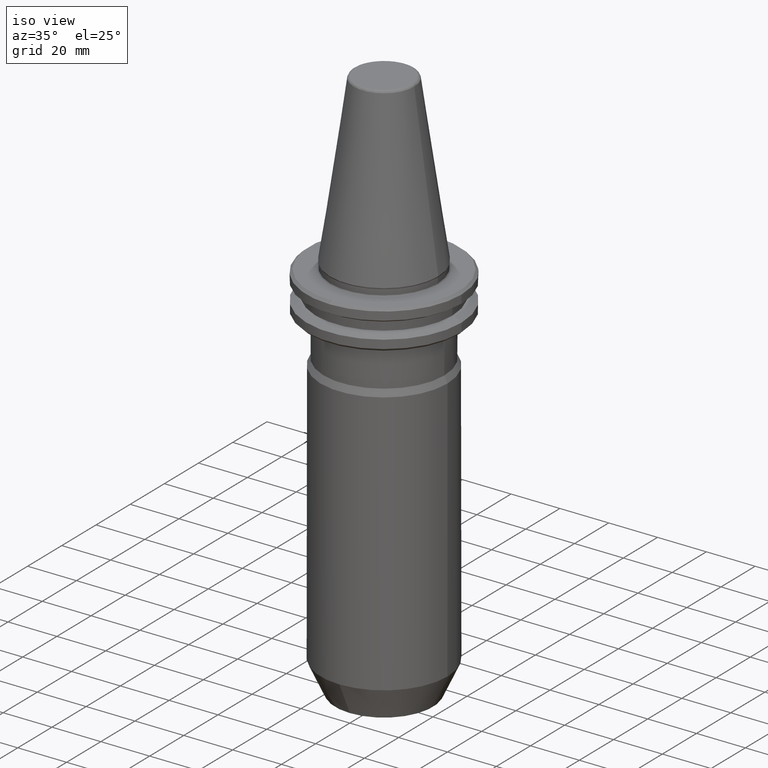
[diagram: clean part render]
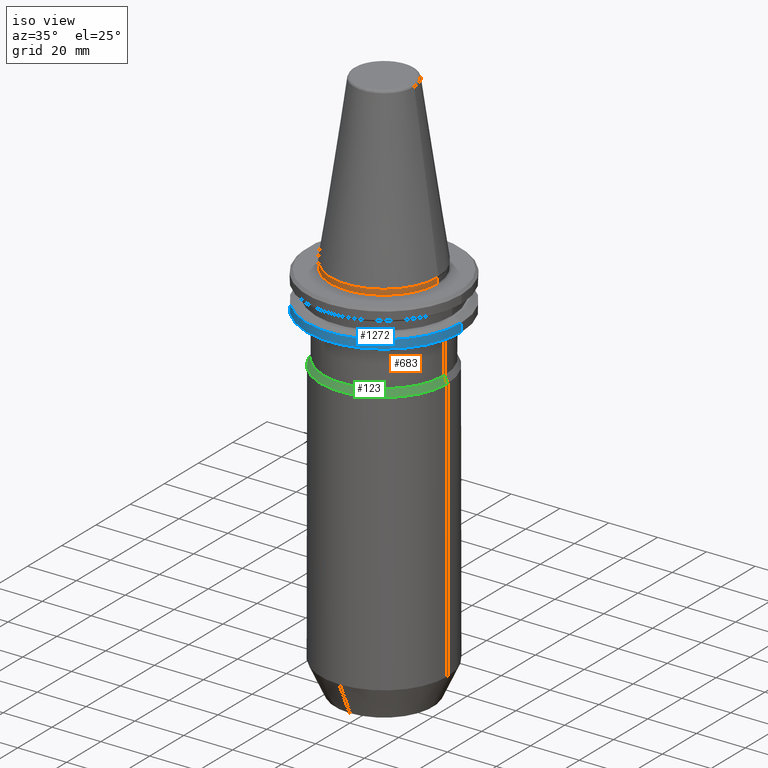
[diagram: same view with three faces highlighted in distinct colors, each labeled with its STEP entity id]
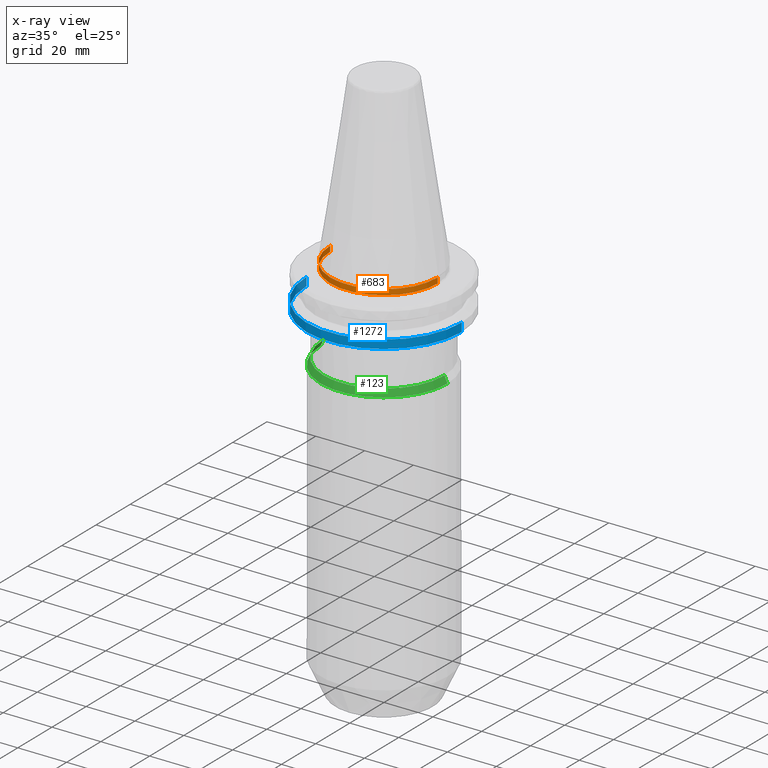
[diagram: x-ray of the same camera — body ghosted, the three highlighted faces saturated]
A machine part, iso view with three faces highlighted in distinct colors.
The next image is the same camera in x-ray (body ghosted, the three faces saturated) — at least one of them is partly hidden behind the body in this view.
Their STEP definitions:

[orange] entity #683 — the highlighted cylindrical surface (partial cylindrical patch) has radius 22 mm, axis along (0, 0, 1).
#63 = VECTOR ( 'NONE', #391, 1000.000000000000000 ) ;
#111 = EDGE_CURVE ( 'NONE', #387, #1579, #350, .T. ) ;
#207 = CYLINDRICAL_SURFACE ( 'NONE', #1058, 22.00000000000000000 ) ;
#245 = LINE ( 'NONE', #1065, #63 ) ;
#350 = LINE ( 'NONE', #1366, #1369 ) ;
#374 = CARTESIAN_POINT ( 'NONE',  ( 0.0000000000000000000, 0.0000000000000000000, 113.5216080541959500 ) ) ;
#387 = VERTEX_POINT ( 'NONE', #957 ) ;
#391 = DIRECTION ( 'NONE',  ( 0.0000000000000000000, 0.0000000000000000000, 1.000000000000000000 ) ) ;
#412 = EDGE_CURVE ( 'NONE', #1539, #387, #414, .T. ) ;
#414 = CIRCLE ( 'NONE', #1040, 22.00000000000000400 ) ;
#565 = DIRECTION ( 'NONE',  ( -0.0000000000000000000, -0.0000000000000000000, -1.000000000000000000 ) ) ;
#579 = EDGE_CURVE ( 'NONE', #1579, #606, #1168, .T. ) ;
#606 = VERTEX_POINT ( 'NONE', #1590 ) ;
#682 = CARTESIAN_POINT ( 'NONE',  ( 0.0000000000000000000, 0.0000000000000000000, -2.699999999999994000 ) ) ;
#683 = ADVANCED_FACE ( 'NONE', ( #1608 ), #207, .T. ) ;
#739 = CARTESIAN_POINT ( 'NONE',  ( -22.00000000000000400, 2.694222958124177600E-015, -2.699999999999994000 ) ) ;
#817 = AXIS2_PLACEMENT_3D ( 'NONE', #1370, #565, #1484 ) ;
#818 = DIRECTION ( 'NONE',  ( 1.000000000000000000, 0.0000000000000000000, 0.0000000000000000000 ) ) ;
#911 = DIRECTION ( 'NONE',  ( 1.000000000000000000, 0.0000000000000000000, 0.0000000000000000000 ) ) ;
#957 = CARTESIAN_POINT ( 'NONE',  ( 22.00000000000000400, 0.0000000000000000000, -2.699999999999994000 ) ) ;
#1025 = ORIENTED_EDGE ( 'NONE', *, *, #412, .T. ) ;
#1040 = AXIS2_PLACEMENT_3D ( 'NONE', #682, #1575, #818 ) ;
#1058 = AXIS2_PLACEMENT_3D ( 'NONE', #374, #1172, #911 ) ;
#1065 = CARTESIAN_POINT ( 'NONE',  ( -22.00000000000000000, 2.694222958124176800E-015, 113.5216080541959500 ) ) ;
#1168 = CIRCLE ( 'NONE', #817, 22.00000000000000000 ) ;
#1172 = DIRECTION ( 'NONE',  ( 0.0000000000000000000, 0.0000000000000000000, 1.000000000000000000 ) ) ;
#1207 = ORIENTED_EDGE ( 'NONE', *, *, #1384, .F. ) ;
#1224 = DIRECTION ( 'NONE',  ( 0.0000000000000000000, 0.0000000000000000000, 1.000000000000000000 ) ) ;
#1288 = CARTESIAN_POINT ( 'NONE',  ( 22.00000000000000000, 0.0000000000000000000, -0.4825140571146635500 ) ) ;
#1325 = ORIENTED_EDGE ( 'NONE', *, *, #111, .T. ) ;
#1366 = CARTESIAN_POINT ( 'NONE',  ( 22.00000000000000000, 0.0000000000000000000, 113.5216080541959500 ) ) ;
#1369 = VECTOR ( 'NONE', #1224, 1000.000000000000000 ) ;
#1370 = CARTESIAN_POINT ( 'NONE',  ( 0.0000000000000000000, 0.0000000000000000000, -0.4825140571146635500 ) ) ;
#1384 = EDGE_CURVE ( 'NONE', #1539, #606, #245, .T. ) ;
#1390 = EDGE_LOOP ( 'NONE', ( #1207, #1025, #1325, #1526 ) ) ;
#1484 = DIRECTION ( 'NONE',  ( 1.000000000000000000, 0.0000000000000000000, 0.0000000000000000000 ) ) ;
#1526 = ORIENTED_EDGE ( 'NONE', *, *, #579, .T. ) ;
#1539 = VERTEX_POINT ( 'NONE', #739 ) ;
#1575 = DIRECTION ( 'NONE',  ( 0.0000000000000000000, 0.0000000000000000000, 1.000000000000000000 ) ) ;
#1579 = VERTEX_POINT ( 'NONE', #1288 ) ;
#1590 = CARTESIAN_POINT ( 'NONE',  ( -22.00000000000000000, 2.708000234614584800E-015, -0.4825140571146635500 ) ) ;
#1608 = FACE_OUTER_BOUND ( 'NONE', #1390, .T. ) ;

[blue] entity #1272 — the highlighted cylindrical surface (partial cylindrical patch) has radius 31.75 mm, axis along (0, 0, 1).
#31 = ORIENTED_EDGE ( 'NONE', *, *, #1421, .F. ) ;
#74 = EDGE_LOOP ( 'NONE', ( #1628, #831, #567, #31 ) ) ;
#99 = EDGE_CURVE ( 'NONE', #962, #960, #1328, .T. ) ;
#221 = CARTESIAN_POINT ( 'NONE',  ( 31.75000000000000000, 0.0000000000000000000, 113.5216080541959500 ) ) ;
#264 = CARTESIAN_POINT ( 'NONE',  ( 0.0000000000000000000, 0.0000000000000000000, -14.62183664205671200 ) ) ;
#276 = DIRECTION ( 'NONE',  ( 0.0000000000000000000, 0.0000000000000000000, 1.000000000000000000 ) ) ;
#278 = AXIS2_PLACEMENT_3D ( 'NONE', #264, #1199, #400 ) ;
#333 = EDGE_CURVE ( 'NONE', #962, #764, #1208, .T. ) ;
#354 = EDGE_CURVE ( 'NONE', #960, #836, #807, .T. ) ;
#400 = DIRECTION ( 'NONE',  ( -1.000000000000000000, 0.0000000000000000000, 5.463695987328526400E-017 ) ) ;
#423 = CIRCLE ( 'NONE', #278, 31.75000000000000000 ) ;
#452 = VECTOR ( 'NONE', #276, 1000.000000000000000 ) ;
#501 = AXIS2_PLACEMENT_3D ( 'NONE', #1203, #1187, #1182 ) ;
#531 = CARTESIAN_POINT ( 'NONE',  ( -31.75000000000000000, 0.0000000000000000000, -14.62183664205671200 ) ) ;
#567 = ORIENTED_EDGE ( 'NONE', *, *, #333, .T. ) ;
#629 = DIRECTION ( 'NONE',  ( 1.000000000000000000, 0.0000000000000000000, 0.0000000000000000000 ) ) ;
#638 = CARTESIAN_POINT ( 'NONE',  ( 31.75000000000000000, 3.888253587292846500E-015, -14.62183664205671200 ) ) ;
#675 = DIRECTION ( 'NONE',  ( 0.0000000000000000000, 0.0000000000000000000, 1.000000000000000000 ) ) ;
#764 = VERTEX_POINT ( 'NONE', #638 ) ;
#807 = LINE ( 'NONE', #1462, #1459 ) ;
#831 = ORIENTED_EDGE ( 'NONE', *, *, #99, .F. ) ;
#836 = VERTEX_POINT ( 'NONE', #531 ) ;
#960 = VERTEX_POINT ( 'NONE', #1101 ) ;
#962 = VERTEX_POINT ( 'NONE', #1235 ) ;
#1101 = CARTESIAN_POINT ( 'NONE',  ( -31.74999999999925000, 3.888253587292755000E-015, -18.10000000000078300 ) ) ;
#1178 = AXIS2_PLACEMENT_3D ( 'NONE', #1299, #1414, #629 ) ;
#1182 = DIRECTION ( 'NONE',  ( -1.000000000000000000, 0.0000000000000000000, 0.0000000000000000000 ) ) ;
#1187 = DIRECTION ( 'NONE',  ( -0.0000000000000000000, -0.0000000000000000000, -1.000000000000000000 ) ) ;
#1199 = DIRECTION ( 'NONE',  ( -0.0000000000000000000, -0.0000000000000000000, 1.000000000000000000 ) ) ;
#1203 = CARTESIAN_POINT ( 'NONE',  ( 0.0000000000000000000, 0.0000000000000000000, -18.10000000000078300 ) ) ;
#1208 = LINE ( 'NONE', #221, #452 ) ;
#1235 = CARTESIAN_POINT ( 'NONE',  ( 31.74999999999925000, 0.0000000000000000000, -18.10000000000078300 ) ) ;
#1238 = CYLINDRICAL_SURFACE ( 'NONE', #1178, 31.75000000000000000 ) ;
#1272 = ADVANCED_FACE ( 'NONE', ( #1342 ), #1238, .T. ) ;
#1299 = CARTESIAN_POINT ( 'NONE',  ( 0.0000000000000000000, 0.0000000000000000000, 113.5216080541959500 ) ) ;
#1328 = CIRCLE ( 'NONE', #501, 31.75000000000005700 ) ;
#1342 = FACE_OUTER_BOUND ( 'NONE', #74, .T. ) ;
#1414 = DIRECTION ( 'NONE',  ( 0.0000000000000000000, 0.0000000000000000000, 1.000000000000000000 ) ) ;
#1421 = EDGE_CURVE ( 'NONE', #836, #764, #423, .T. ) ;
#1459 = VECTOR ( 'NONE', #675, 1000.000000000000000 ) ;
#1462 = CARTESIAN_POINT ( 'NONE',  ( -31.75000000000000000, 3.888253587292846500E-015, 113.5216080541959500 ) ) ;
#1628 = ORIENTED_EDGE ( 'NONE', *, *, #354, .F. ) ;

[green] entity #123 — the highlighted conical surface has half-angle 25 deg.
#11 = CIRCLE ( 'NONE', #931, 26.00000000000000700 ) ;
#35 = CARTESIAN_POINT ( 'NONE',  ( -26.00000000000000700, 3.184081677783119000E-015, -38.67999999999999300 ) ) ;
#36 = VERTEX_POINT ( 'NONE', #1346 ) ;
#94 = EDGE_CURVE ( 'NONE', #36, #413, #1408, .T. ) ;
#123 = ADVANCED_FACE ( 'NONE', ( #1070 ), #614, .T. ) ;
#192 = EDGE_CURVE ( 'NONE', #1626, #612, #1282, .T. ) ;
#281 = CARTESIAN_POINT ( 'NONE',  ( 0.0000000000000000000, 0.0000000000000000000, -35.99936634936307200 ) ) ;
#361 = CARTESIAN_POINT ( 'NONE',  ( 0.0000000000000000000, 0.0000000000000000000, -38.67999999999999300 ) ) ;
#413 = VERTEX_POINT ( 'NONE', #1351 ) ;
#419 = DIRECTION ( 'NONE',  ( -1.000000000000000000, 0.0000000000000000000, 0.0000000000000000000 ) ) ;
#451 = ORIENTED_EDGE ( 'NONE', *, *, #192, .T. ) ;
#487 = DIRECTION ( 'NONE',  ( 1.000000000000000000, 0.0000000000000000000, 0.0000000000000000000 ) ) ;
#571 = VECTOR ( 'NONE', #892, 1000.000000000000200 ) ;
#612 = VERTEX_POINT ( 'NONE', #35 ) ;
#614 = CONICAL_SURFACE ( 'NONE', #1162, 26.00000000000000000, 0.4363323129985855500 ) ;
#633 = EDGE_CURVE ( 'NONE', #413, #612, #11, .T. ) ;
#693 = ORIENTED_EDGE ( 'NONE', *, *, #94, .F. ) ;
#698 = VECTOR ( 'NONE', #1289, 1000.000000000000200 ) ;
#775 = CARTESIAN_POINT ( 'NONE',  ( -24.75000000000000000, 0.0000000000000000000, -35.99936634936307200 ) ) ;
#857 = EDGE_CURVE ( 'NONE', #36, #1626, #1046, .T. ) ;
#892 = DIRECTION ( 'NONE',  ( -0.4226182617407022700, 0.0000000000000000000, -0.9063077870366486000 ) ) ;
#919 = CARTESIAN_POINT ( 'NONE',  ( -26.00000000000000000, 0.0000000000000000000, -38.67999999999999300 ) ) ;
#931 = AXIS2_PLACEMENT_3D ( 'NONE', #361, #1285, #487 ) ;
#1046 = CIRCLE ( 'NONE', #1382, 24.75000000000000000 ) ;
#1070 = FACE_OUTER_BOUND ( 'NONE', #1461, .T. ) ;
#1157 = CARTESIAN_POINT ( 'NONE',  ( 0.0000000000000000000, 0.0000000000000000000, -38.67999999999999300 ) ) ;
#1162 = AXIS2_PLACEMENT_3D ( 'NONE', #1157, #1171, #1174 ) ;
#1171 = DIRECTION ( 'NONE',  ( 0.0000000000000000000, 0.0000000000000000000, -1.000000000000000000 ) ) ;
#1174 = DIRECTION ( 'NONE',  ( -1.000000000000000000, 0.0000000000000000000, 0.0000000000000000000 ) ) ;
#1219 = DIRECTION ( 'NONE',  ( 0.0000000000000000000, 0.0000000000000000000, -1.000000000000000000 ) ) ;
#1267 = CARTESIAN_POINT ( 'NONE',  ( 26.00000000000000000, 3.184081677783118200E-015, -38.67999999999999300 ) ) ;
#1282 = LINE ( 'NONE', #919, #571 ) ;
#1285 = DIRECTION ( 'NONE',  ( -0.0000000000000000000, -0.0000000000000000000, -1.000000000000000000 ) ) ;
#1289 = DIRECTION ( 'NONE',  ( 0.4226182617407022700, 5.175581015019693900E-017, -0.9063077870366486000 ) ) ;
#1346 = CARTESIAN_POINT ( 'NONE',  ( 24.75000000000000000, 3.107541252836408700E-015, -35.99936634936307200 ) ) ;
#1348 = ORIENTED_EDGE ( 'NONE', *, *, #633, .F. ) ;
#1351 = CARTESIAN_POINT ( 'NONE',  ( 26.00000000000000700, 0.0000000000000000000, -38.67999999999999300 ) ) ;
#1371 = ORIENTED_EDGE ( 'NONE', *, *, #857, .T. ) ;
#1382 = AXIS2_PLACEMENT_3D ( 'NONE', #281, #1219, #419 ) ;
#1408 = LINE ( 'NONE', #1267, #698 ) ;
#1461 = EDGE_LOOP ( 'NONE', ( #693, #1371, #451, #1348 ) ) ;
#1626 = VERTEX_POINT ( 'NONE', #775 ) ;